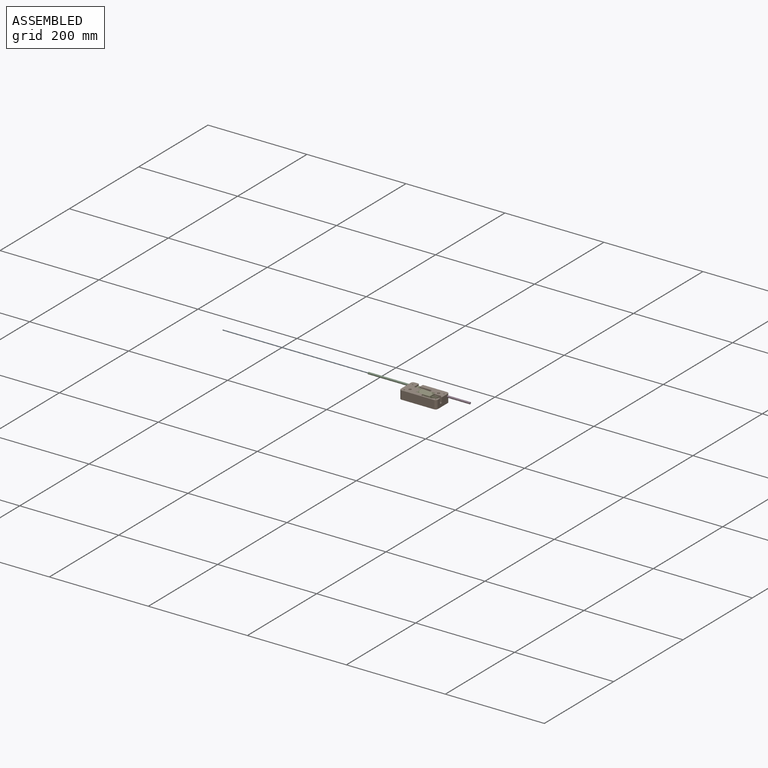
[diagram: assembled view]
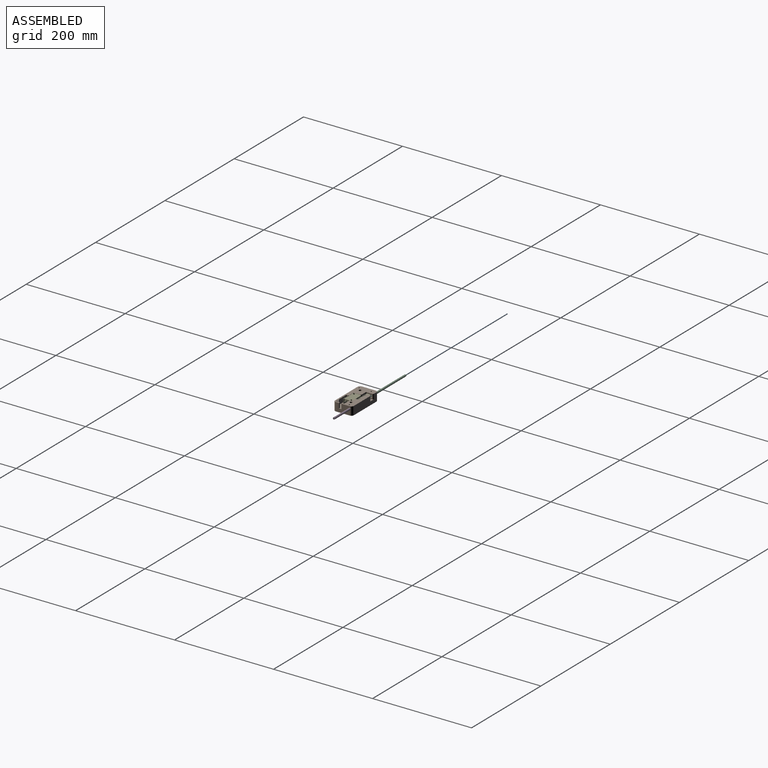
[diagram: assembled view, second angle]
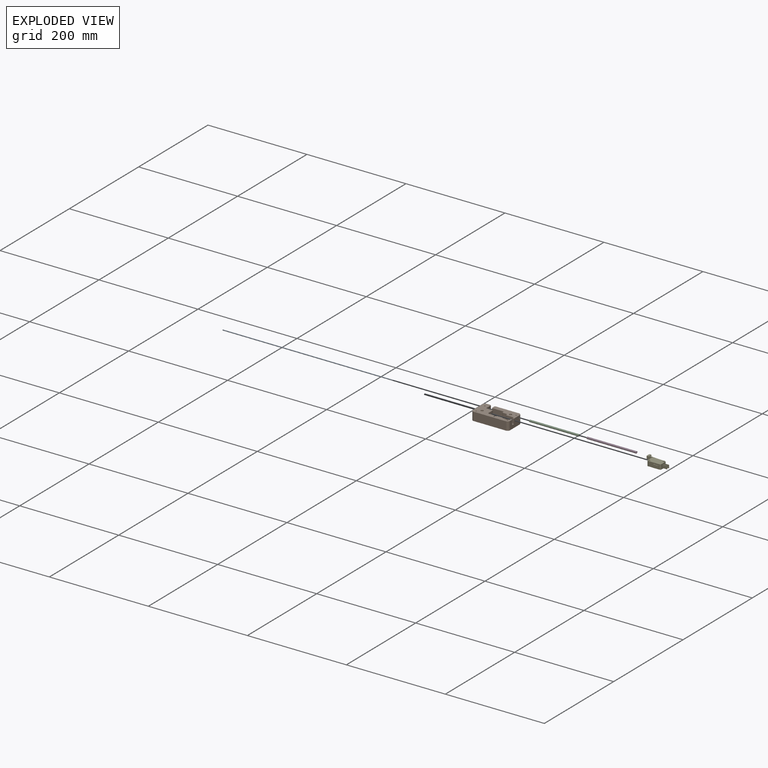
[diagram: exploded view]
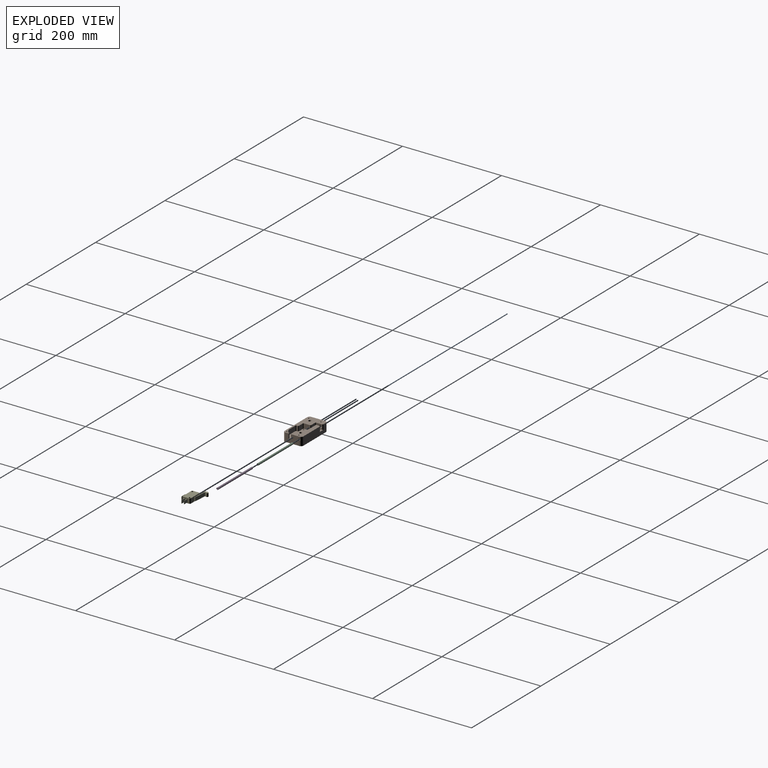
[diagram: exploded view, second angle]
ASSEMBLY  parts=5 mates=2
PART A: 3 faces, bbox 1.8x1.8x500 mm
  f0: cylinder r=0.88mm len=500mm, axis (0,0,-1), area 2748.9mm2, adj f1,f2
  f1: plane 1.75x1.75mm, normal (0,0,1), area 2.4mm2, adj f0
  f2: plane 1.75x1.75mm, normal (0,0,-1), area 2.4mm2, adj f0
PART B: 84 faces, bbox 75x38x17 mm
  f0: plane 9.98x2.15mm, normal (-1,0,0), area 21.4mm2, adj f20,f22,f51,f69
  f1: plane 28x17mm, normal (1,0,0), area 419.6mm2, adj f2,f10,f11,f12,f20,f21,f22,f51
  f2: plane 75x38mm, normal (0,0,1), area 1063.3mm2, adj f1,f15,f17,f18,f19,f26,f27,f28
  f3: cylinder r=2mm len=10.9mm, axis (1,0,0), area 44.9mm2, adj f4,f8,f42,f70
  f4: plane 11x1mm, normal (0,-0.5,0.87), area 12.7mm2, adj f3,f5,f42,f70
  f5: plane 11x1mm, normal (0,0.5,0.87), area 12.7mm2, adj f4,f6,f15,f42
  f6: cylinder r=2mm len=11mm, axis (1,0,0), area 46.1mm2, adj f5,f7,f15,f42
  f7: plane 11x1mm, normal (0,0.5,-0.87), area 12.7mm2, adj f6,f8,f15,f42
  f8: plane 11x1mm, normal (0,-0.5,-0.87), area 12.7mm2, adj f3,f7,f42,f70
  f9: plane 50.88x1mm, normal (0,-0.5,-0.87), area 58.7mm2, adj f10,f14,f41,f73
  f10: plane 50.88x1mm, normal (0,0.5,-0.87), area 58.7mm2, adj f1,f9,f11,f41
  f11: cylinder r=2mm len=50.88mm, axis (1,0,0), area 213.1mm2, adj f1,f10,f12,f41
  f12: plane 50.88x1mm, normal (0,0.5,0.87), area 58.7mm2, adj f1,f11,f13,f41
  f13: plane 50.88x1mm, normal (0,-0.5,0.87), area 58.7mm2, adj f12,f14,f41,f73
  f14: cylinder r=2mm len=50.77mm, axis (1,0,0), area 211.9mm2, adj f9,f13,f41,f73
  f15: plane 28x17mm, normal (-1,0,0), area 469.5mm2, adj f2,f5,f6,f7,f21,f70,f71
  f16: plane 9.98x5.3mm, normal (-1,0,0), area 49.7mm2, adj f20,f22,f35,f36,f37,f38,f39,f40
  f17: plane 11.34x9.98mm, normal (1,0,0), area 87.6mm2, adj f2,f22,f61,f75,f78,f79,f80,f81
  f18: plane 65x17mm, normal (0,1,0), area 994mm2, adj f2,f20,f21,f22,f70,f73,f74,f75
  f19: plane 65x17mm, normal (0,-1,0), area 1105mm2, adj f2,f21,f71,f72
  f20: plane 53.88x21.79mm, normal (0,0,1), area 680.7mm2, adj f0,f1,f16,f18,f23,f24,f25,f32
  f21: plane 75x38mm, normal (0,0,-1), area 2755mm2, adj f1,f15,f18,f19,f49,f50,f53,f54
  f22: plane 63x35mm, normal (0,0,1), area 1011mm2, adj f0,f1,f16,f17,f18,f23,f24,f25
  f23: plane 9.98x7.68mm, normal (0,-1,0), area 76.6mm2, adj f20,f22,f57,f58
  f24: plane 9.98x1.93mm, normal (-1,0,0), area 19.3mm2, adj f20,f22,f58,f59
  f25: plane 21.35x9.98mm, normal (0,-1,0), area 213mm2, adj f20,f22,f59,f60
  f26: plane 10.95x9.98mm, normal (0,1,0), area 109.3mm2, adj f2,f22,f61,f62
  f27: plane 12x9.98mm, normal (1,0,0), area 119.7mm2, adj f2,f22,f62,f63
  f28: plane 11.1x9.98mm, normal (0,1,0), area 110.7mm2, adj f2,f22,f63,f64
  f29: plane 9.98x2.16mm, normal (1,0,0), area 21.6mm2, adj f2,f22,f64,f65
  f30: plane 19.67x9.98mm, normal (0,1,0), area 196.2mm2, adj f2,f22,f65,f66
  f31: plane 9.98x7.28mm, normal (-0.55,0.84,0), area 86.7mm2, adj f2,f22,f66,f67
  f32: plane 9.98x1.4mm, normal (-1,0,0), area 14mm2, adj f20,f22,f57,f68
  f33: plane 9.98x1.96mm, normal (-1,0,0), area 19.5mm2, adj f2,f22,f52,f67
  f34: plane 12.85x9.98mm, normal (0,-1,0), area 128.2mm2, adj f20,f22,f68,f69
  f35: cylinder r=1mm len=3mm, axis (-1,0,0), area 6.3mm2, adj f16,f36,f40,f41
  f36: plane 3x0.5mm, normal (0,-0.5,-0.87), area 1.7mm2, adj f16,f35,f37,f41
  f37: plane 3x0.5mm, normal (0,0.5,-0.87), area 1.7mm2, adj f16,f36,f38,f41
  f38: cylinder r=1mm len=3mm, axis (-1,0,0), area 6.3mm2, adj f16,f37,f39,f41
  f39: plane 3x0.5mm, normal (0,0.5,0.87), area 1.7mm2, adj f16,f38,f40,f41
  f40: plane 3x0.5mm, normal (0,-0.5,0.87), area 1.7mm2, adj f16,f35,f39,f41
  f41: plane 4.62x4mm, normal (1,0,0), area 9.7mm2, adj f9,f10,f11,f12,f13,f14,f35,f36
  f42: plane 4.62x4mm, normal (-1,0,0), area 9.7mm2, adj f3,f4,f5,f6,f7,f8,f43,f44
  f43: cylinder r=1mm len=1.73mm, axis (1,0,0), area 2.5mm2, adj f42,f44,f48,f79
  f44: plane 1.2x0.5mm, normal (0,0.5,-0.87), area 0.7mm2, adj f42,f43,f45,f78
  f45: plane 1.2x0.5mm, normal (0,-0.5,-0.87), area 0.7mm2, adj f42,f44,f46,f80
  f46: cylinder r=1mm len=1.73mm, axis (1,0,0), area 2.5mm2, adj f42,f45,f47,f82
  f47: plane 1.2x0.5mm, normal (0,-0.5,0.87), area 0.7mm2, adj f42,f46,f48,f83
  f48: plane 1.2x0.5mm, normal (0,0.5,0.87), area 0.7mm2, adj f42,f43,f47,f81
  f49: cylinder r=1.25mm len=7.03mm, axis (0,0,1), area 55.2mm2, adj f21,f22
  f50: cylinder r=1.25mm len=7.03mm, axis (0,0,1), area 55.2mm2, adj f21,f22
  f51: plane 9.98x3mm, normal (0,-1,0), area 29.9mm2, adj f0,f1,f20,f22
  f52: plane 9.98x3mm, normal (0,1,0), area 29.9mm2, adj f1,f2,f22,f33
  f53: cylinder r=1.25mm len=17mm, axis (0,0,1), area 133.5mm2, adj f2,f21
  f54: cylinder r=1.25mm len=17mm, axis (0,0,1), area 133.5mm2, adj f20,f21
  f55: cylinder r=1.25mm len=17mm, axis (0,0,1), area 133.5mm2, adj f2,f21
  f56: cylinder r=1.25mm len=17mm, axis (0,0,1), area 133.5mm2, adj f2,f21
  f57: cylinder r=1.5mm len=9.98mm, axis (0,0,1), area 23.5mm2, adj f20,f22,f23,f32
  f58: cylinder r=1.5mm len=9.98mm, axis (0,0,1), area 23.5mm2, adj f20,f22,f23,f24
  f59: cylinder r=1.5mm len=9.98mm, axis (0,0,-1), area 23.5mm2, adj f20,f22,f24,f25
  f60: cylinder r=1.5mm len=9.98mm, axis (0,0,1), area 23.5mm2, adj f16,f20,f22,f25
  f61: cylinder r=1.5mm len=9.98mm, axis (0,0,-1), area 23.5mm2, adj f2,f17,f22,f26
  f62: cylinder r=1.5mm len=9.98mm, axis (0,0,1), area 23.5mm2, adj f2,f22,f26,f27
  f63: cylinder r=1.5mm len=9.98mm, axis (0,0,-1), area 23.5mm2, adj f2,f22,f27,f28
  f64: cylinder r=1.5mm len=9.98mm, axis (0,0,1), area 23.5mm2, adj f2,f22,f28,f29
  f65: cylinder r=1.5mm len=9.98mm, axis (0,0,-1), area 23.5mm2, adj f2,f22,f29,f30
  f66: cylinder r=1.5mm len=9.98mm, axis (0,0,-1), area 8.7mm2, adj f2,f22,f30,f31
  f67: cylinder r=1.5mm len=9.98mm, axis (0,0,-1), area 14.8mm2, adj f2,f22,f31,f33
  f68: cylinder r=1.5mm len=9.98mm, axis (0,0,1), area 23.5mm2, adj f20,f22,f32,f34
  f69: cylinder r=1.5mm len=9.98mm, axis (0,0,1), area 23.5mm2, adj f0,f20,f22,f34
  f70: cylinder r=5mm len=17mm, axis (0,0,1), area 126.9mm2, adj f2,f3,f4,f8,f15,f18,f21
  f71: cylinder r=5mm len=17mm, axis (0,0,-1), area 133.5mm2, adj f2,f15,f19,f21
  f72: cylinder r=5mm len=17mm, axis (0,0,1), area 133.5mm2, adj f1,f2,f19,f21
  f73: cylinder r=5mm len=17mm, axis (0,0,-1), area 126.9mm2, adj f1,f9,f13,f14,f18,f20,f21
  f74: cylinder r=2mm len=9.98mm, axis (0,0,-1), area 31.3mm2, adj f16,f18,f20,f22
  f75: cylinder r=2mm len=9.98mm, axis (0,0,-1), area 31.3mm2, adj f2,f17,f18,f22
  f76: cylinder r=2.65mm len=17mm, axis (0,0,1), area 283.1mm2, adj f20,f21
  f77: cylinder r=2.65mm len=17mm, axis (0,0,1), area 283.1mm2, adj f2,f21
  f78: plane 2.37x1.8mm, normal (0.71,0.35,-0.61), area 2.8mm2, adj f17,f44,f79,f80
  f79: cone r=1mm half-angle=45deg, axis (1,0,0), area 10.1mm2, adj f17,f43,f78,f81
  f80: plane 2.37x1.8mm, normal (0.71,-0.35,-0.61), area 2.8mm2, adj f17,f45,f78,f82
  f81: plane 2.37x1.8mm, normal (0.71,0.35,0.61), area 2.8mm2, adj f17,f48,f79,f83
  f82: cone r=1mm half-angle=45deg, axis (1,0,0), area 10.1mm2, adj f17,f46,f80,f83
  f83: plane 2.37x1.8mm, normal (0.71,-0.35,0.61), area 2.8mm2, adj f17,f47,f81,f82
PART C: 4 faces, bbox 4x4x100 mm
  f0: cylinder r=1.5mm len=100mm, axis (0,0,-1), area 942.5mm2, adj f2,f3
  f1: cylinder r=2mm len=100mm, axis (0,0,-1), area 1256.6mm2, adj f2,f3
  f2: plane 4x4mm, normal (0,0,1), area 5.5mm2, adj f0,f1
  f3: plane 4x4mm, normal (0,0,-1), area 5.5mm2, adj f0,f1
PART D: same geometry as C
PART E: 44 faces, bbox 50.7x29.2x9.8 mm
  f0: plane 7.15x0.08mm, normal (1,-0.08,0), area 0.6mm2, adj f2,f31,f32,f43
  f1: plane 7.15x0.7mm, normal (1,-0.08,0), area 5mm2, adj f30,f31,f32,f43
  f2: cylinder r=2.3mm len=7.15mm, axis (0,0,-1), area 67.1mm2, adj f0,f31,f32,f41
  f3: plane 15.04x7.15mm, normal (-0.08,-1,0), area 107.8mm2, adj f31,f32,f40,f42
  f4: plane 10.9x9.75mm, normal (1,0,0), area 96.2mm2, adj f10,f11,f12,f13,f15,f16,f17,f18
  f5: plane 23x9.75mm, normal (0,-1,0), area 219.2mm2, adj f10,f11,f22,f23,f27,f28,f33,f36
  f6: plane 23x9.75mm, normal (0,1,0), area 218.5mm2, adj f10,f11,f29,f31,f32,f34,f35,f37
  f7: cylinder r=1.7mm len=9.75mm, axis (0,0,-1), area 104.1mm2, adj f10,f11
  f8: cylinder r=1.7mm len=9.75mm, axis (0,0,-1), area 104.1mm2, adj f10,f11
  f9: plane 10.9x9.75mm, normal (-1,0,0), area 106.3mm2, adj f10,f11,f35,f36
  f10: plane 28x15.9mm, normal (0,0,1), area 421.7mm2, adj f4,f5,f6,f7,f8,f9,f33,f34
  f11: plane 28x15.9mm, normal (0,0,-1), area 421.7mm2, adj f4,f5,f6,f7,f8,f9,f33,f34
  f12: plane 9.6x6.3mm, normal (0,1,0), area 60.5mm2, adj f4,f14,f15,f16
  f13: plane 9.6x6.3mm, normal (0,-1,0), area 60.5mm2, adj f4,f14,f15,f16
  f14: plane 6.3x0.8mm, normal (1,0,0), area 5mm2, adj f12,f13,f15,f16
  f15: plane 9.6x0.8mm, normal (0,0,1), area 7.7mm2, adj f4,f12,f13,f14
  f16: plane 9.6x0.8mm, normal (0,0,-1), area 7.7mm2, adj f4,f12,f13,f14
  f17: plane 9.6x6.3mm, normal (0,1,0), area 60.5mm2, adj f4,f19,f20,f21
  f18: plane 9.6x6.3mm, normal (0,-1,0), area 60.5mm2, adj f4,f19,f20,f21
  f19: plane 6.3x0.8mm, normal (1,0,0), area 5mm2, adj f17,f18,f20,f21
  f20: plane 9.6x0.8mm, normal (0,0,1), area 7.7mm2, adj f4,f17,f18,f19
  f21: plane 9.6x0.8mm, normal (0,0,-1), area 7.7mm2, adj f4,f17,f18,f19
  f22: plane 6.3x2.5mm, normal (1,0,0), area 15.7mm2, adj f5,f26,f27,f28
  f23: plane 6.3x3.3mm, normal (-1,0,0), area 20.8mm2, adj f5,f24,f27,f28
  f24: plane 10.15x6.3mm, normal (0,-1,0), area 63.9mm2, adj f23,f25,f27,f28
  f25: plane 6.3x0.8mm, normal (1,0,0), area 5mm2, adj f24,f26,f27,f28
  f26: plane 9.35x6.3mm, normal (0,1,0), area 58.9mm2, adj f22,f25,f27,f28
  f27: plane 10.15x3.3mm, normal (0,0,1), area 10.1mm2, adj f5,f22,f23,f24,f25,f26
  f28: plane 10.15x3.3mm, normal (0,0,-1), area 10.1mm2, adj f5,f22,f23,f24,f25,f26
  f29: plane 7.15x2.19mm, normal (1,-0.08,0), area 15.7mm2, adj f6,f30,f31,f32
  f30: plane 25.07x7.15mm, normal (0.08,1,0), area 179.8mm2, adj f1,f29,f31,f32
  f31: plane 29.48x10mm, normal (0,0,1), area 70.2mm2, adj f0,f1,f2,f3,f6,f29,f30,f37
  f32: plane 29.48x10mm, normal (0,0,-1), area 70.2mm2, adj f0,f1,f2,f3,f6,f29,f30,f37
  f33: cylinder r=2.5mm len=9.75mm, axis (0,0,1), area 38.3mm2, adj f4,f5,f10,f11
  f34: cylinder r=2.5mm len=9.75mm, axis (0,0,-1), area 38.3mm2, adj f4,f6,f10,f11
  f35: cylinder r=2.5mm len=9.75mm, axis (0,0,1), area 38.3mm2, adj f6,f9,f10,f11
  f36: cylinder r=2.5mm len=9.75mm, axis (0,0,-1), area 38.3mm2, adj f5,f9,f10,f11
  f37: plane 7.15x1.46mm, normal (-1,0,0), area 10.5mm2, adj f6,f31,f32,f38
  f38: plane 28.05x7.15mm, normal (0,-1,0), area 200.6mm2, adj f31,f32,f37,f39
  f39: plane 7.15x2.83mm, normal (-1,0,0), area 20.3mm2, adj f31,f32,f38,f41
  f40: plane 15.04x7.15mm, normal (0,1,0), area 107.5mm2, adj f3,f31,f32,f42
  f41: cylinder r=2.3mm len=7.15mm, axis (0,0,-1), area 22.4mm2, adj f2,f31,f32,f39
  f42: plane 7.15x1.18mm, normal (1,0,0), area 8.5mm2, adj f3,f31,f32,f40
  f43: cylinder r=2.3mm len=7.15mm, axis (0,0,-1), area 9.1mm2, adj f0,f1,f31,f32
PLACE A rot(axis=(0.58,0.58,0.58),120deg) t=(-421.43,16.79,0)mm
PLACE B at identity fixed
PLACE C rot(axis=(0,1,0),90deg) t=(-127.55,16.79,0)mm
PLACE D rot(axis=(0,-1,0),90deg) t=(78.57,16.79,0)mm
PLACE E t=(0,0,-0.1)mm
MATE fastened A.f0 <-> D.f1  axis (1,0,0) through (78.57,16.79,0)mm
MATE fastened E.f8 <-> B.f49  axis (0,0,-1) through (11.1,5.05,-4.98)mm
